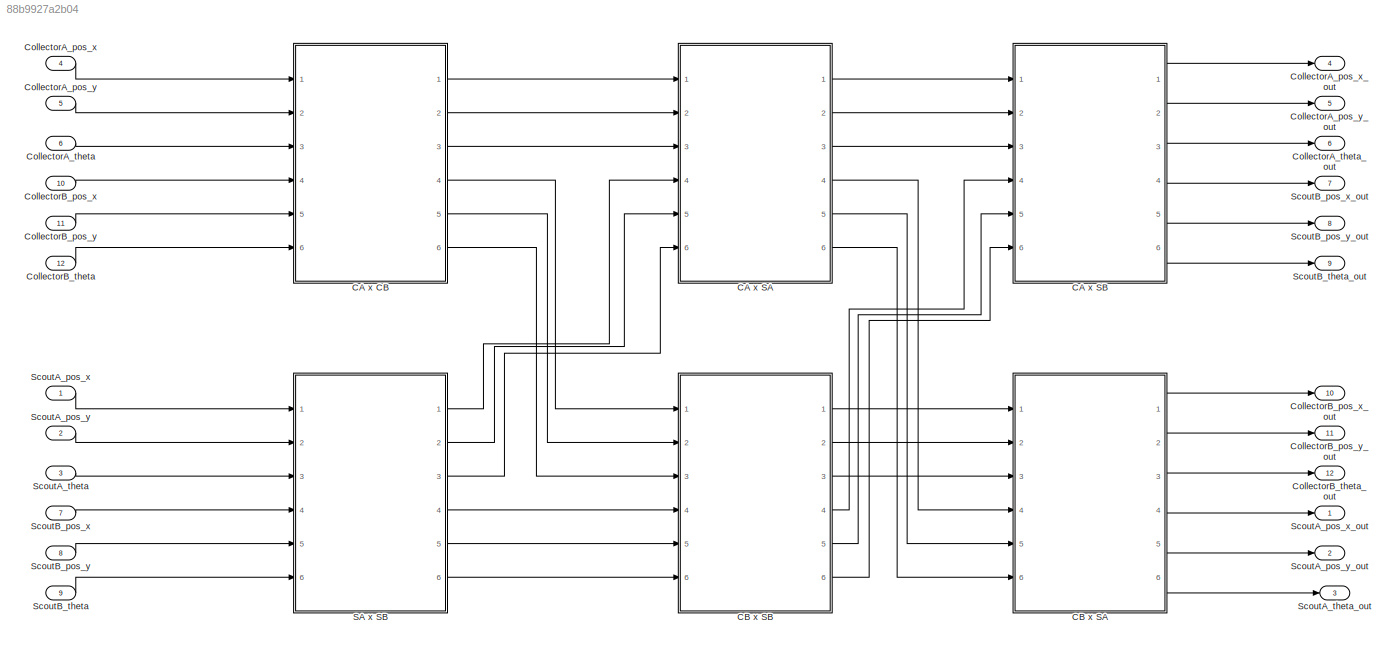
MODEL slx_88b9927a2b04
KIND model
CONFIG AbsTol = auto
CONFIG EnableMultiTasking = off
CONFIG FixedStep = 0.01
CONFIG MaxStep = .01
CONFIG MinStep = auto
CONFIG RelTol = 1e-3
CONFIG SampleTimeConstraint = Unconstrained
CONFIG Solver = VariableStepAuto
CONFIG SolverName = VariableStepAuto
CONFIG StartTime = 0.0
CONFIG StopTime = 120
BLOCK [ModelReference] CA x CB
  ModelNameDialog = collide_between.slx
  ModelReferenceVersion = 1.744
  Ports = [6, 6]
BLOCK [ModelReference] CA x SA
  ModelNameDialog = collide_between.slx
  ModelReferenceVersion = 1.744
  Ports = [6, 6]
BLOCK [ModelReference] CA x SB
  ModelNameDialog = collide_between.slx
  ModelReferenceVersion = 1.744
  Ports = [6, 6]
BLOCK [ModelReference] CB x SA
  ModelNameDialog = collide_between.slx
  ModelReferenceVersion = 1.744
  Ports = [6, 6]
BLOCK [ModelReference] CB x SB
  ModelNameDialog = collide_between.slx
  ModelReferenceVersion = 1.744
  Ports = [6, 6]
BLOCK [Inport] CollectorA_pos_x
  IconDisplay = Port number
  OutDataTypeStr = double
  Port = 4
  PortDimensions = 1
  SampleTime = 0
  SamplingMode = Sample based
  SignalType = real
BLOCK [Outport] CollectorA_pos_x_out
  IconDisplay = Port number
  Port = 4
BLOCK [Inport] CollectorA_pos_y
  IconDisplay = Port number
  OutDataTypeStr = double
  Port = 5
  PortDimensions = 1
  SampleTime = 0
  SamplingMode = Sample based
  SignalType = real
BLOCK [Outport] CollectorA_pos_y_out
  IconDisplay = Port number
  Port = 5
BLOCK [Inport] CollectorA_theta
  IconDisplay = Port number
  OutDataTypeStr = double
  Port = 6
  PortDimensions = 1
  SampleTime = 0
  SamplingMode = Sample based
  SignalType = real
BLOCK [Outport] CollectorA_theta_out
  IconDisplay = Port number
  Port = 6
BLOCK [Inport] CollectorB_pos_x
  IconDisplay = Port number
  OutDataTypeStr = double
  Port = 10
  PortDimensions = 1
  SampleTime = 0
  SamplingMode = Sample based
  SignalType = real
BLOCK [Outport] CollectorB_pos_x_out
  IconDisplay = Port number
  Port = 10
BLOCK [Inport] CollectorB_pos_y
  IconDisplay = Port number
  OutDataTypeStr = double
  Port = 11
  PortDimensions = 1
  SampleTime = 0
  SamplingMode = Sample based
  SignalType = real
BLOCK [Outport] CollectorB_pos_y_out
  IconDisplay = Port number
  Port = 11
BLOCK [Inport] CollectorB_theta
  IconDisplay = Port number
  OutDataTypeStr = double
  Port = 12
  PortDimensions = 1
  SampleTime = 0
  SamplingMode = Sample based
  SignalType = real
BLOCK [Outport] CollectorB_theta_out
  IconDisplay = Port number
  Port = 12
BLOCK [ModelReference] SA x SB
  ModelNameDialog = collide_between.slx
  ModelReferenceVersion = 1.744
  Ports = [6, 6]
BLOCK [Inport] ScoutA_pos_x
  IconDisplay = Port number
  OutDataTypeStr = double
  PortDimensions = 1
  SampleTime = 0
  SamplingMode = Sample based
  SignalType = real
BLOCK [Outport] ScoutA_pos_x_out
  IconDisplay = Port number
BLOCK [Inport] ScoutA_pos_y
  IconDisplay = Port number
  OutDataTypeStr = double
  Port = 2
  PortDimensions = 1
  SampleTime = 0
  SamplingMode = Sample based
  SignalType = real
BLOCK [Outport] ScoutA_pos_y_out
  IconDisplay = Port number
  Port = 2
BLOCK [Inport] ScoutA_theta
  IconDisplay = Port number
  OutDataTypeStr = double
  Port = 3
  PortDimensions = 1
  SampleTime = 0
  SamplingMode = Sample based
  SignalType = real
BLOCK [Outport] ScoutA_theta_out
  IconDisplay = Port number
  Port = 3
BLOCK [Inport] ScoutB_pos_x
  IconDisplay = Port number
  OutDataTypeStr = double
  Port = 7
  PortDimensions = 1
  SampleTime = 0
  SamplingMode = Sample based
  SignalType = real
BLOCK [Outport] ScoutB_pos_x_out
  IconDisplay = Port number
  Port = 7
BLOCK [Inport] ScoutB_pos_y
  IconDisplay = Port number
  OutDataTypeStr = double
  Port = 8
  PortDimensions = 1
  SampleTime = 0
  SamplingMode = Sample based
  SignalType = real
BLOCK [Outport] ScoutB_pos_y_out
  IconDisplay = Port number
  Port = 8
BLOCK [Inport] ScoutB_theta
  IconDisplay = Port number
  OutDataTypeStr = double
  Port = 9
  PortDimensions = 1
  SampleTime = 0
  SamplingMode = Sample based
  SignalType = real
BLOCK [Outport] ScoutB_theta_out
  IconDisplay = Port number
  Port = 9
LINE CA x CB:1 -> CA x SA:1
LINE CA x CB:2 -> CA x SA:2
LINE CA x CB:3 -> CA x SA:3
LINE CA x CB:4 -> CB x SB:1
LINE CA x CB:5 -> CB x SB:2
LINE CA x CB:6 -> CB x SB:3
LINE CA x SA:1 -> CA x SB:1
LINE CA x SA:2 -> CA x SB:2
LINE CA x SA:3 -> CA x SB:3
LINE CA x SA:4 -> CB x SA:4
LINE CA x SA:5 -> CB x SA:5
LINE CA x SA:6 -> CB x SA:6
LINE CA x SB:1 -> CollectorA_pos_x_out:1
LINE CA x SB:2 -> CollectorA_pos_y_out:1
LINE CA x SB:3 -> CollectorA_theta_out:1
LINE CA x SB:4 -> ScoutB_pos_x_out:1
LINE CA x SB:5 -> ScoutB_pos_y_out:1
LINE CA x SB:6 -> ScoutB_theta_out:1
LINE CB x SA:1 -> CollectorB_pos_x_out:1
LINE CB x SA:2 -> CollectorB_pos_y_out:1
LINE CB x SA:3 -> CollectorB_theta_out:1
LINE CB x SA:4 -> ScoutA_pos_x_out:1
LINE CB x SA:5 -> ScoutA_pos_y_out:1
LINE CB x SA:6 -> ScoutA_theta_out:1
LINE CB x SB:1 -> CB x SA:1
LINE CB x SB:2 -> CB x SA:2
LINE CB x SB:3 -> CB x SA:3
LINE CB x SB:4 -> CA x SB:4
LINE CB x SB:5 -> CA x SB:5
LINE CB x SB:6 -> CA x SB:6
LINE CollectorA_pos_x:1 -> CA x CB:1
LINE CollectorA_pos_y:1 -> CA x CB:2
LINE CollectorA_theta:1 -> CA x CB:3
LINE CollectorB_pos_x:1 -> CA x CB:4
LINE CollectorB_pos_y:1 -> CA x CB:5
LINE CollectorB_theta:1 -> CA x CB:6
LINE SA x SB:1 -> CA x SA:4
LINE SA x SB:2 -> CA x SA:5
LINE SA x SB:3 -> CA x SA:6
LINE SA x SB:4 -> CB x SB:4
LINE SA x SB:5 -> CB x SB:5
LINE SA x SB:6 -> CB x SB:6
LINE ScoutA_pos_x:1 -> SA x SB:1
LINE ScoutA_pos_y:1 -> SA x SB:2
LINE ScoutA_theta:1 -> SA x SB:3
LINE ScoutB_pos_x:1 -> SA x SB:4
LINE ScoutB_pos_y:1 -> SA x SB:5
LINE ScoutB_theta:1 -> SA x SB:6
